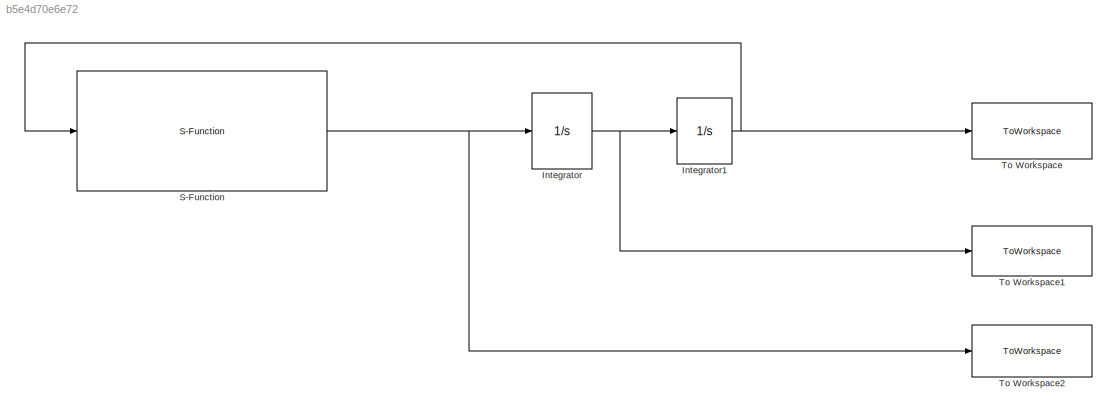
MODEL slx_b5e4d70e6e72
KIND model
CONFIG AbsTol = auto
CONFIG EnableMultiTasking = off
CONFIG FixedStep = 1
CONFIG MaxStep = auto
CONFIG MinStep = auto
CONFIG RelTol = 1e-3
CONFIG SampleTimeConstraint = Unconstrained
CONFIG SolverName = FixedStepAuto
CONFIG StartTime = 0.0
CONFIG StopTime = 10000
BLOCK [Integrator] Integrator
  InitialCondition = v_start
  Ports = [1, 1]
BLOCK [Integrator] Integrator1
  InitialCondition = r_start
  Ports = [1, 1]
BLOCK [S-Function] S-Function
  EnableBusSupport = off
  FunctionName = Simple_gravity_s_function
  Ports = [1, 1]
  SFcnIsStateOwnerBlock = off
  SFunctionDeploymentMode = off
BLOCK [ToWorkspace] To Workspace
  FixptAsFi = on
  MaxDataPoints = inf
  Ports = [1]
  SampleTime = -1
  VariableName = position
BLOCK [ToWorkspace] To Workspace1
  FixptAsFi = on
  MaxDataPoints = inf
  Ports = [1]
  SampleTime = -1
  VariableName = velocity
BLOCK [ToWorkspace] To Workspace2
  FixptAsFi = on
  MaxDataPoints = inf
  Ports = [1]
  SampleTime = -1
  VariableName = acc
NET Integrator1:1 -> S-Function:1, To Workspace:1
NET Integrator:1 -> Integrator1:1, To Workspace1:1
NET S-Function:1 -> Integrator:1, To Workspace2:1
note: NET lines group one-source signal fan-out (src -> all destinations, sorted); 1:1 wires keep LINE
